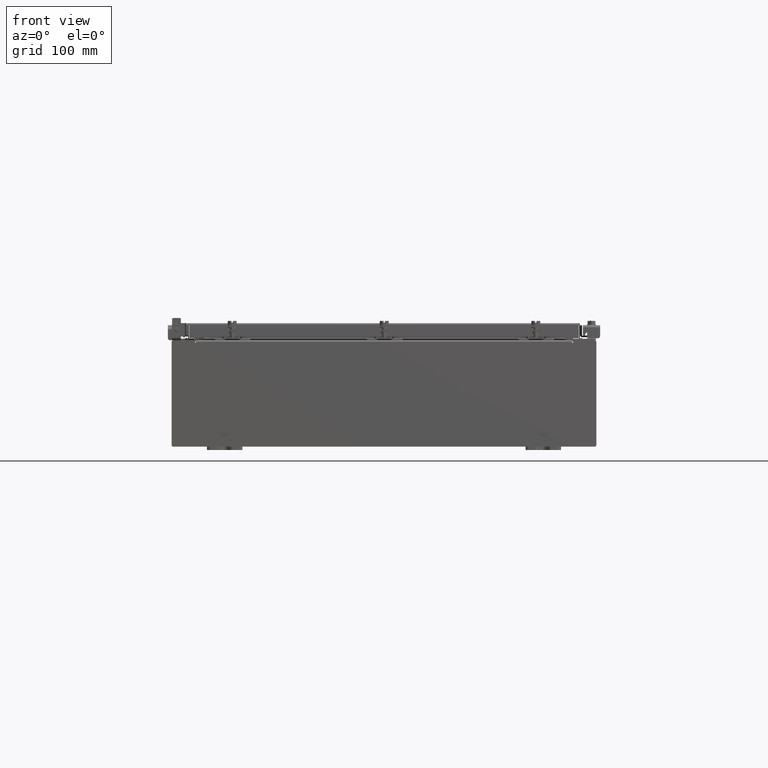
[diagram: clean part render]
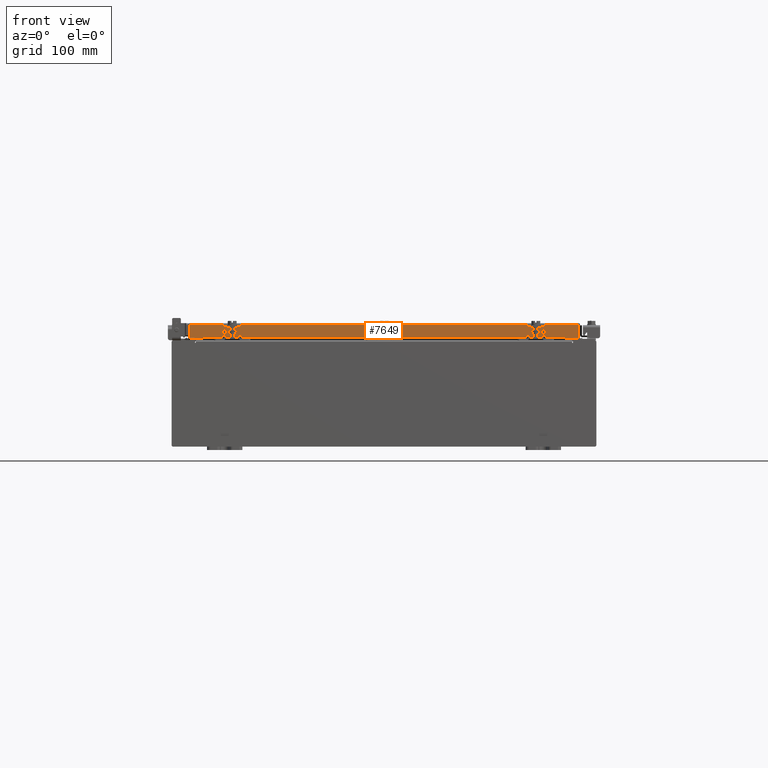
[diagram: same view with one face highlighted and labeled with its STEP entity id]
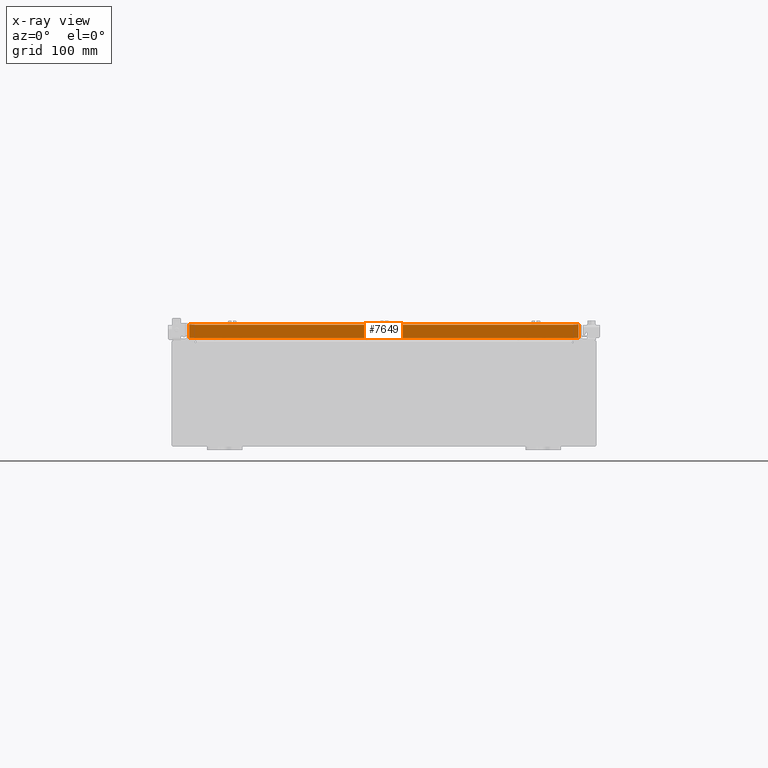
[diagram: x-ray of the same camera — body ghosted, the highlighted face saturated]
A machine part, front view. The second image highlights one B-rep face of the part: STEP entity #7649.
The next image is the same camera in x-ray: the body ghosted, the highlighted face saturated — about 0% of this face is hidden behind the body in this view.
In plain terms, the highlighted planar face has unit normal (0, 1, -0).
Its self-contained STEP definition (entity closure, byte-faithful):
#59 = CARTESIAN_POINT ( 'NONE',  ( -10.23915786437626900, -14.09399999999999900, -0.8500000000000012000 ) ) ;
#593 = CARTESIAN_POINT ( 'NONE',  ( -10.98915786437626900, -14.09399999999999900, 3.999012166344522900E-014 ) ) ;
#644 = CARTESIAN_POINT ( 'NONE',  ( 10.98915786437626900, -14.09400000000000100, -0.07469999999999978000 ) ) ;
#650 = CARTESIAN_POINT ( 'NONE',  ( -1.390238874262646300E-015, -14.09399999999999900, 3.999012166344522900E-014 ) ) ;
#2048 = ORIENTED_EDGE ( 'NONE', *, *, #13407, .F. ) ;
#2119 = VECTOR ( 'NONE', #18650, 39.37007874015748100 ) ;
#2332 = LINE ( 'NONE', #644, #20776 ) ;
#2377 = ORIENTED_EDGE ( 'NONE', *, *, #21275, .T. ) ;
#2452 = DIRECTION ( 'NONE',  ( 0.0000000000000000000, -2.818880942772360500E-015, -1.000000000000000000 ) ) ;
#2461 = DIRECTION ( 'NONE',  ( 9.864047639155998000E-017, 1.000000000000000000, -2.818880942772360500E-015 ) ) ;
#3357 = VERTEX_POINT ( 'NONE', #7093 ) ;
#4088 = LINE ( 'NONE', #5015, #22532 ) ;
#5015 = CARTESIAN_POINT ( 'NONE',  ( 11.07799999999999800, -14.09400000000000300, -0.8499999999999996400 ) ) ;
#6157 = CARTESIAN_POINT ( 'NONE',  ( 11.07799999999999900, -14.09400000000000100, -0.08770000000000224800 ) ) ;
#6971 = ORIENTED_EDGE ( 'NONE', *, *, #7969, .F. ) ;
#7093 = CARTESIAN_POINT ( 'NONE',  ( -10.98915786437626900, -14.09400000000000100, -0.8499999999999969800 ) ) ;
#7649 = ADVANCED_FACE ( 'NONE', ( #13853 ), #11334, .F. ) ;
#7969 = EDGE_CURVE ( 'NONE', #19028, #3357, #4088, .T. ) ;
#8200 = LINE ( 'NONE', #23048, #17131 ) ;
#8596 = DIRECTION ( 'NONE',  ( -1.000000000000000000, 9.864047639156033700E-017, 1.233005954894504400E-016 ) ) ;
#9029 = CARTESIAN_POINT ( 'NONE',  ( -10.98915786437626700, -14.09399999999999900, -0.08770000000000224800 ) ) ;
#9204 = AXIS2_PLACEMENT_3D ( 'NONE', #650, #2461, #14937 ) ;
#9287 = EDGE_CURVE ( 'NONE', #15458, #19028, #8200, .T. ) ;
#9770 = CARTESIAN_POINT ( 'NONE',  ( 10.23915786437626700, -14.09399999999999900, -0.8500000000000012000 ) ) ;
#10512 = CARTESIAN_POINT ( 'NONE',  ( 11.07799999999999800, -14.09400000000000300, -0.8499999999999996400 ) ) ;
#10515 = VERTEX_POINT ( 'NONE', #9029 ) ;
#10763 = LINE ( 'NONE', #593, #18030 ) ;
#11239 = ORIENTED_EDGE ( 'NONE', *, *, #19943, .F. ) ;
#11266 = DIRECTION ( 'NONE',  ( 0.0000000000000000000, -2.818880942772360500E-015, -1.000000000000000000 ) ) ;
#11334 = PLANE ( 'NONE',  #9204 ) ;
#12864 = LINE ( 'NONE', #10512, #21832 ) ;
#13407 = EDGE_CURVE ( 'NONE', #21207, #15458, #12864, .T. ) ;
#13853 = FACE_OUTER_BOUND ( 'NONE', #20560, .T. ) ;
#14103 = DIRECTION ( 'NONE',  ( -1.000000000000000000, 9.864047639156033700E-017, 1.233005954894504400E-016 ) ) ;
#14528 = ORIENTED_EDGE ( 'NONE', *, *, #9287, .F. ) ;
#14937 = DIRECTION ( 'NONE',  ( 0.0000000000000000000, 2.818880942772360500E-015, 1.000000000000000000 ) ) ;
#15458 = VERTEX_POINT ( 'NONE', #9770 ) ;
#15781 = LINE ( 'NONE', #6157, #2119 ) ;
#17131 = VECTOR ( 'NONE', #21087, 39.37007874015748100 ) ;
#17254 = VERTEX_POINT ( 'NONE', #22717 ) ;
#18030 = VECTOR ( 'NONE', #11266, 39.37007874015748100 ) ;
#18611 = EDGE_CURVE ( 'NONE', #10515, #17254, #15781, .T. ) ;
#18650 = DIRECTION ( 'NONE',  ( 1.000000000000000000, -9.864047639155999200E-017, -9.196021172131615100E-046 ) ) ;
#19028 = VERTEX_POINT ( 'NONE', #59 ) ;
#19943 = EDGE_CURVE ( 'NONE', #17254, #21207, #2332, .T. ) ;
#20548 = ORIENTED_EDGE ( 'NONE', *, *, #18611, .F. ) ;
#20560 = EDGE_LOOP ( 'NONE', ( #20548, #2377, #6971, #14528, #2048, #11239 ) ) ;
#20776 = VECTOR ( 'NONE', #2452, 39.37007874015748100 ) ;
#21087 = DIRECTION ( 'NONE',  ( -1.000000000000000000, 0.0000000000000000000, 0.0000000000000000000 ) ) ;
#21207 = VERTEX_POINT ( 'NONE', #21772 ) ;
#21275 = EDGE_CURVE ( 'NONE', #10515, #3357, #10763, .T. ) ;
#21772 = CARTESIAN_POINT ( 'NONE',  ( 10.98915786437626900, -14.09400000000000300, -0.8499999999999996400 ) ) ;
#21832 = VECTOR ( 'NONE', #14103, 39.37007874015748100 ) ;
#22532 = VECTOR ( 'NONE', #8596, 39.37007874015748100 ) ;
#22717 = CARTESIAN_POINT ( 'NONE',  ( 10.98915786437624400, -14.09400000000000100, -0.08770000000000224800 ) ) ;
#23048 = CARTESIAN_POINT ( 'NONE',  ( 10.23915786437626900, -14.09399999999999900, -0.8500000000000012000 ) ) ;